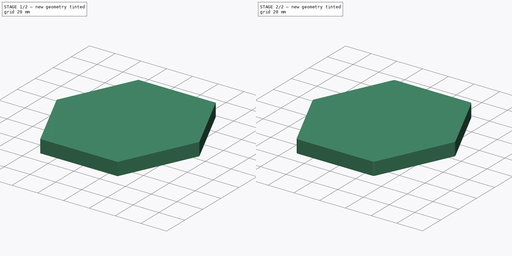
[diagram: build sequence overview — one tinted view per stage of 2, left to right]
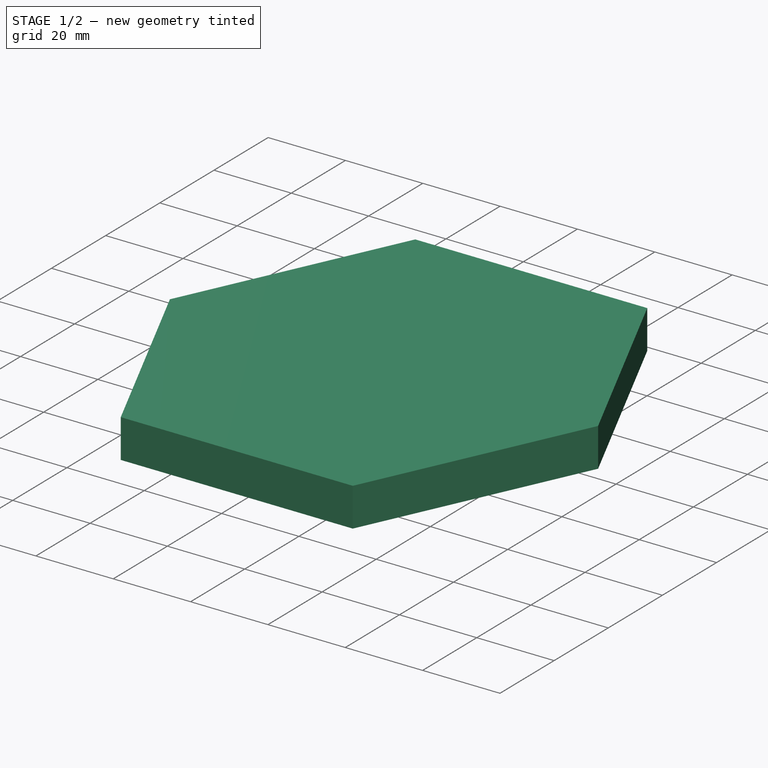
[diagram: stage 1 of 2 — iso view after this stage's code; geometry added in this stage tinted green]
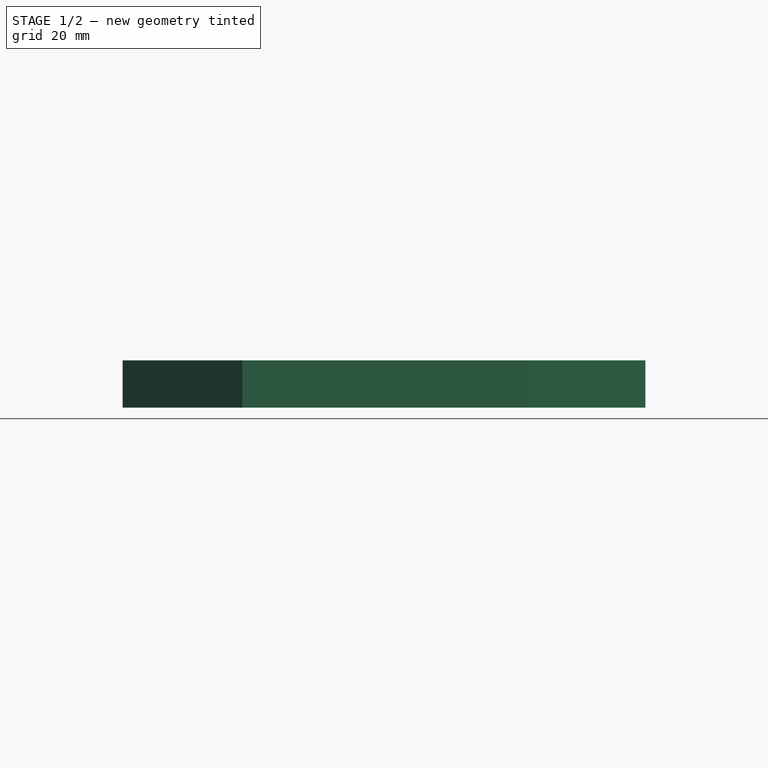
[diagram: stage 1 of 2 — front view after this stage's code; geometry added in this stage tinted green]
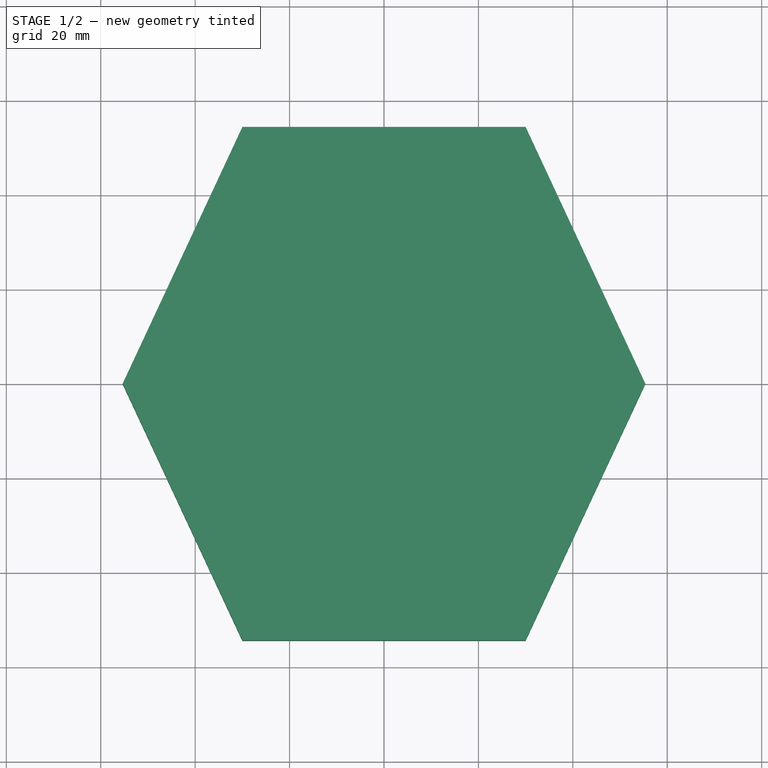
[diagram: stage 1 of 2 — top view after this stage's code; geometry added in this stage tinted green]
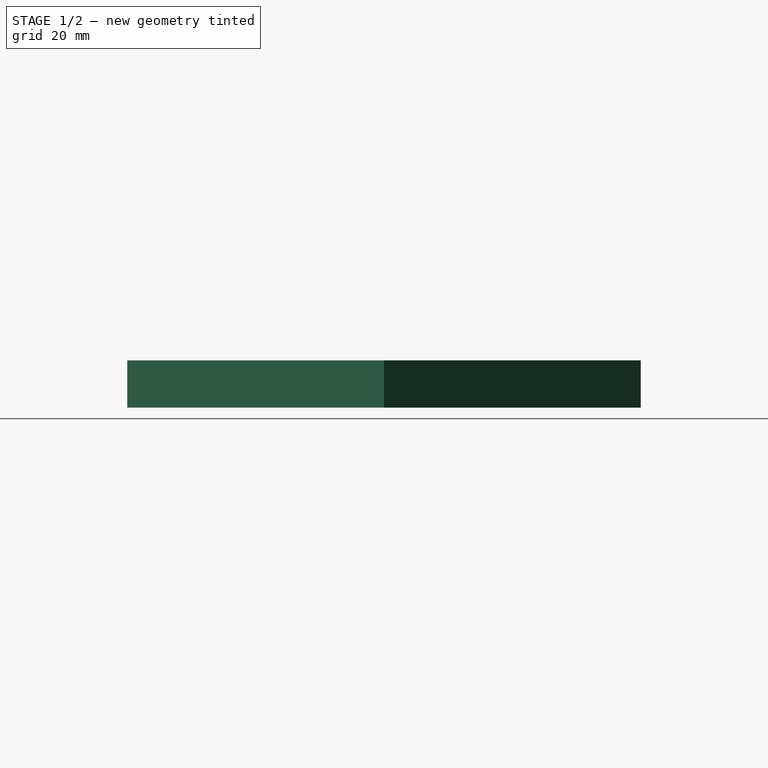
[diagram: stage 1 of 2 — right view after this stage's code; geometry added in this stage tinted green]
FCSTD DOCUMENT  (FreeCAD 0.16R6707 (Git))
Label: Hexagono
License: CreativeCommons Attribution-ShareAlike
LicenseURL: http://creativecommons.org/licenses/by-sa/4.0/
objects: Sketcher::SketchObject×1, PartDesign::Pad×1, PartDesign::Fillet×1
note: 4 computed .brp shape members not serialized (recipe doc carries the construction recipe); baked Part::Feature solids carry a one-line shape summary decoded from their .brp

FEATURE [Sketcher::SketchObject] Sketch  label="BCT_Hexagono"
  sketch-geometry (6):
    g0: LineSegment StartX=-30 StartY=54.3785 StartZ=0 EndX=30 EndY=54.3785 EndZ=0
    g1: LineSegment StartX=30 StartY=54.3785 StartZ=0 EndX=55.3571 EndY=0 EndZ=0
    g2: LineSegment StartX=55.3571 StartY=0 StartZ=0 EndX=30 EndY=-54.3785 EndZ=0
    g3: LineSegment StartX=30 StartY=-54.3785 StartZ=0 EndX=-30 EndY=-54.3785 EndZ=0
    g4: LineSegment StartX=-30 StartY=-54.3785 StartZ=0 EndX=-55.3571 EndY=0 EndZ=0
    g5: LineSegment StartX=-55.3571 StartY=0 StartZ=0 EndX=-30 EndY=54.3785 EndZ=0
  constraints (18):
    c: Coincident(g0,g1)
    c: Coincident(g1,g2)
    c: Coincident(g2,g3)
    c: Horizontal(g3)
    c: Coincident(g3,g4)
    c: Coincident(g4,g5)
    c: Coincident(g0,g5)
    c: Equal(g0,g3)
    c: Symmetric(g0,g0,g-2)
    c: Symmetric(g0,g2,g-1)
    c: PointOnObject(g1,g-1)
    c: DistanceX(g0,g0) = 60
    c: Angle(g1,g-1) = 1.13446
    c: Angle(g5,g0) = 2.00713
    c: Equal(g4,g5)
    c: Equal(g5,g1)
    c: Equal(g1,g2)
    c: Equal(g2,g0)
FEATURE [PartDesign::Pad] Pad
  Length = 10
  Length2 = 100
  Sketch = -> Sketch
  Type = 0
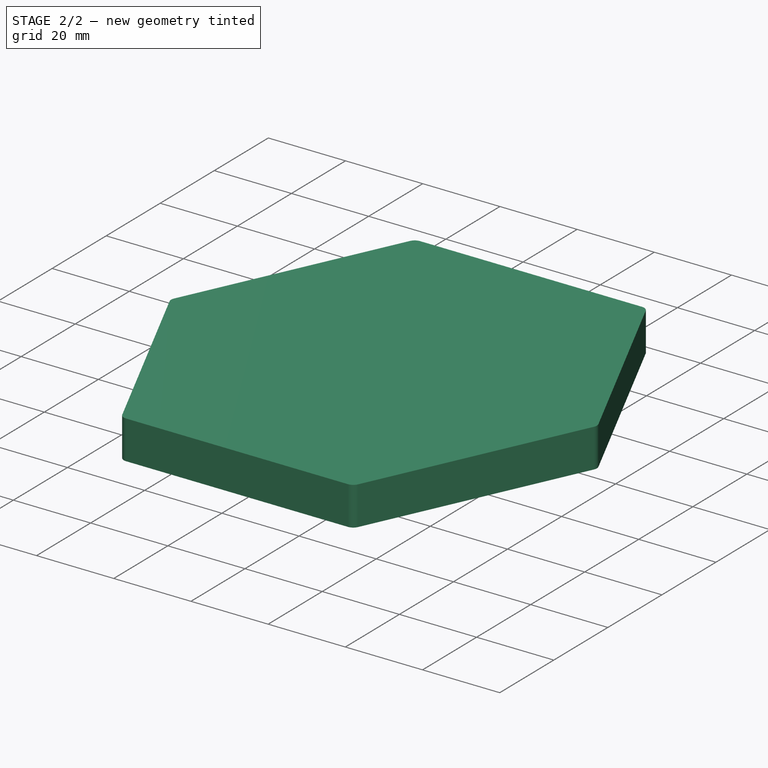
[diagram: stage 2 of 2 — iso view after this stage's code; geometry added in this stage tinted green]
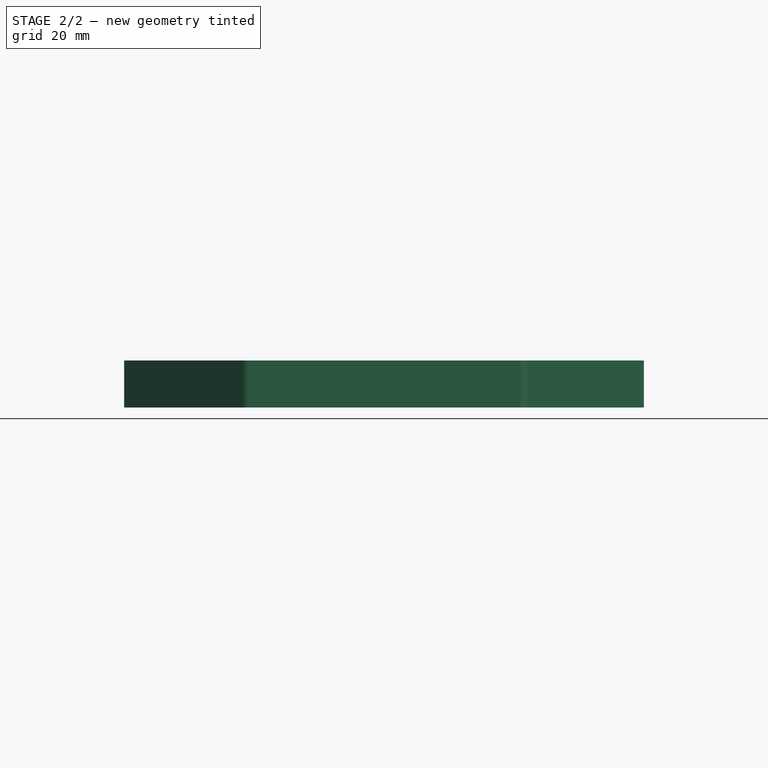
[diagram: stage 2 of 2 — front view after this stage's code; geometry added in this stage tinted green]
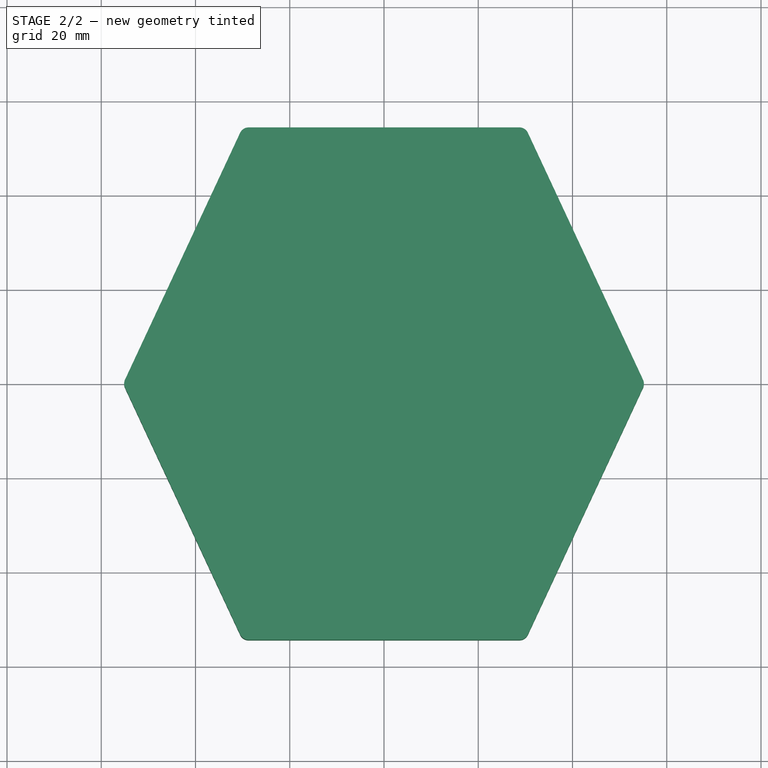
[diagram: stage 2 of 2 — top view after this stage's code; geometry added in this stage tinted green]
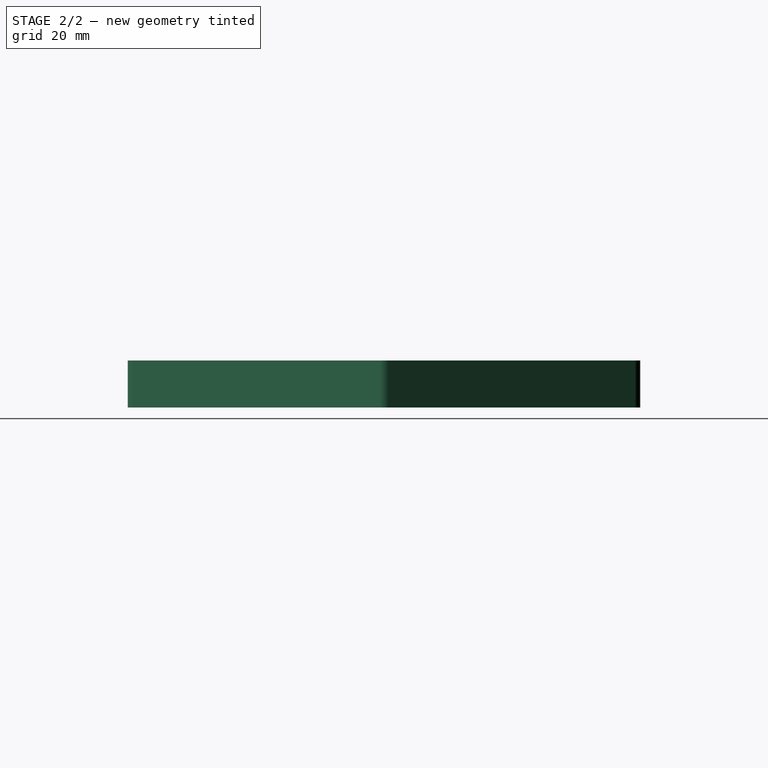
[diagram: stage 2 of 2 — right view after this stage's code; geometry added in this stage tinted green]
FEATURE [PartDesign::Fillet] Fillet  label="Hexagono_redondeado"
  Base = -> Pad [Edge2,Edge1,Edge14,Edge11,Edge8,Edge5]
  Radius = 2
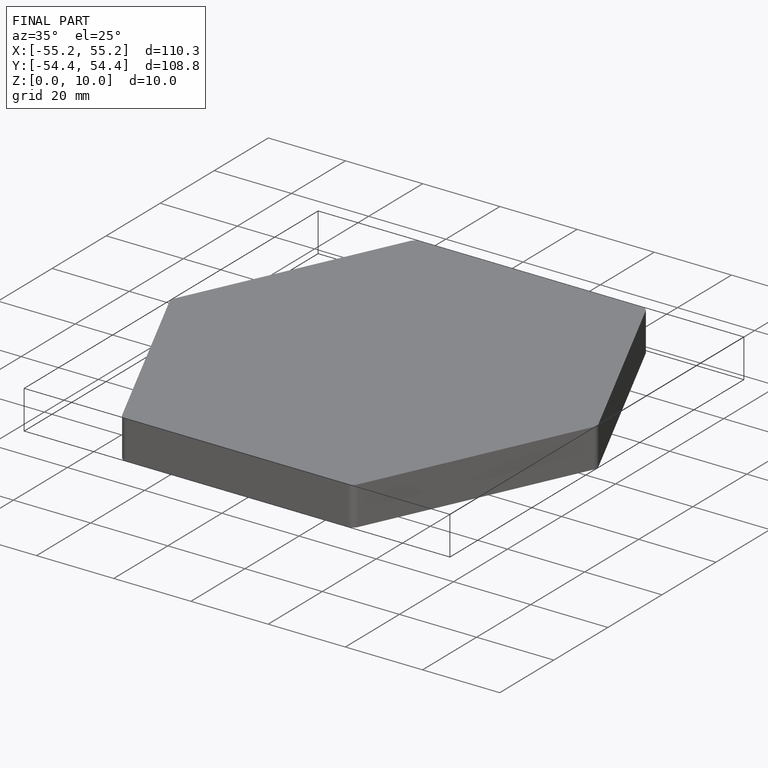
[diagram: finished part — iso view with bounding-box wireframe]
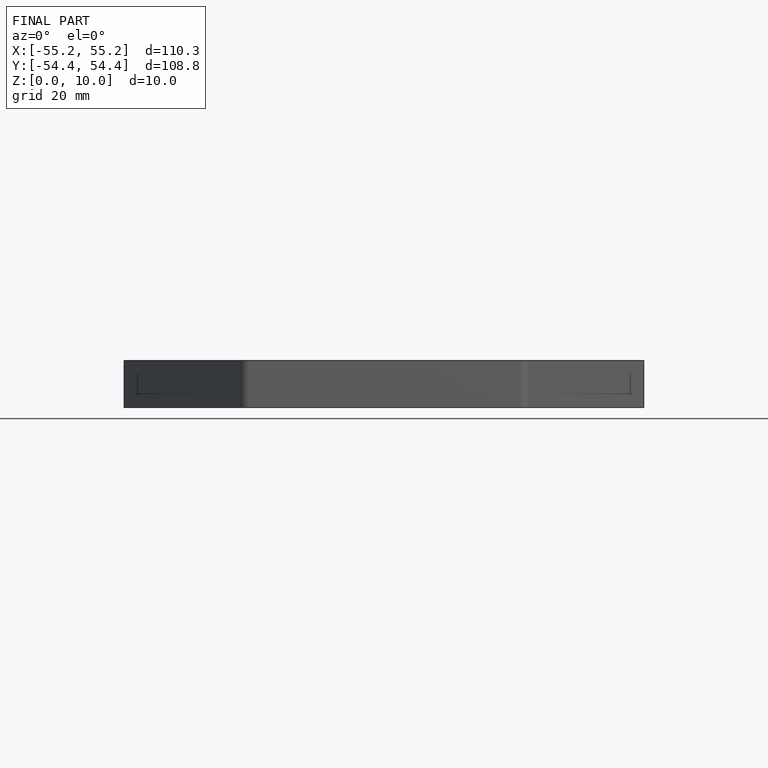
[diagram: finished part — front view with bounding-box wireframe]
